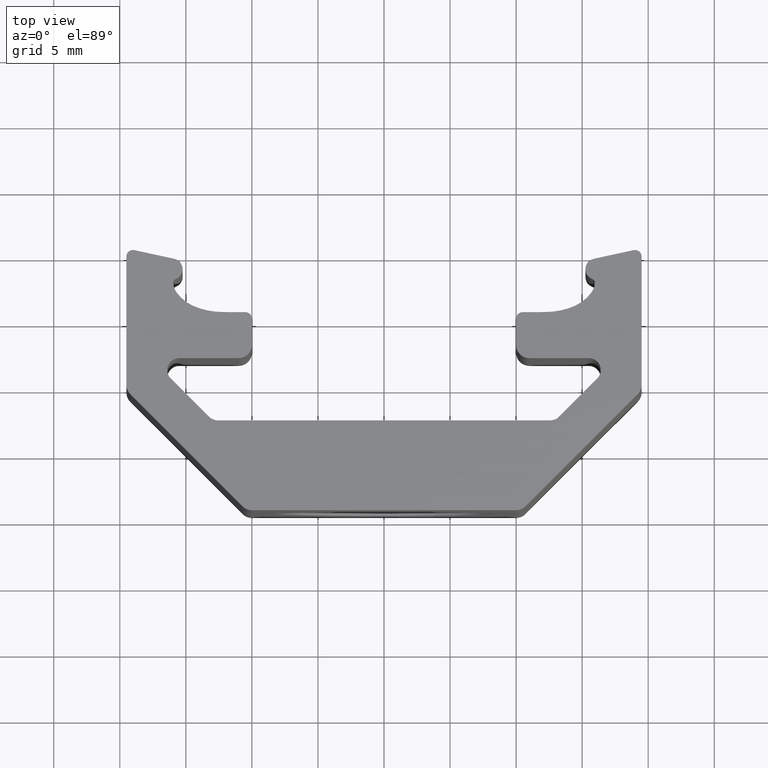
[diagram: clean part render]
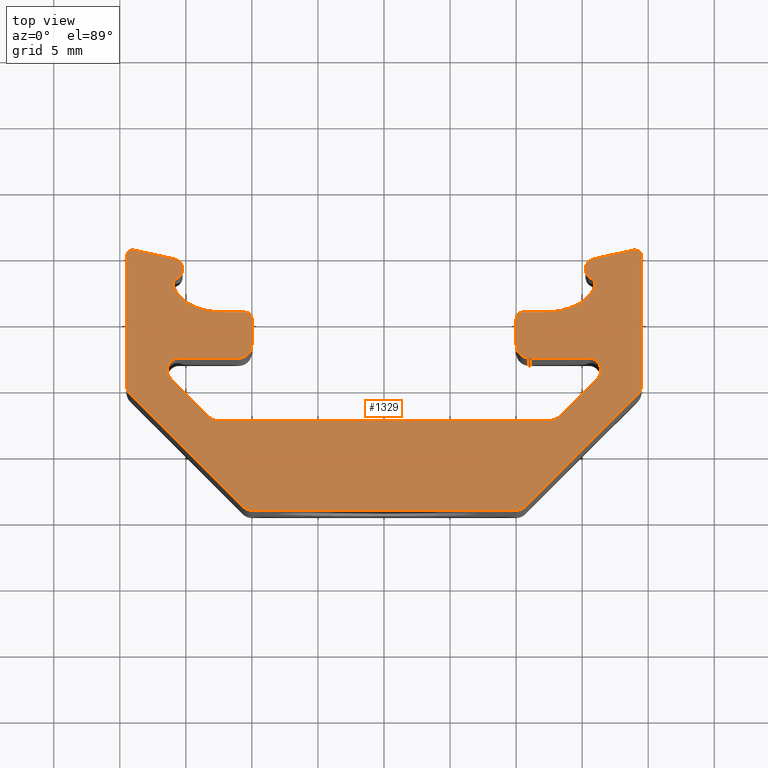
[diagram: same view with one face highlighted and labeled with its STEP entity id]
A machine part, top view. The second image highlights one B-rep face of the part: STEP entity #1329.
In plain terms, the highlighted planar face has unit normal (-0, 0, 1).
Its self-contained STEP definition (entity closure, byte-faithful):
#2 = CARTESIAN_POINT ( 'NONE',  ( -12.55735931287000007, -2.746327330299516589, 17.00000000000005684 ) ) ;
#5 = DIRECTION ( 'NONE',  ( 1.000000000000000000, 0.000000000000000000, 0.000000000000000000 ) ) ;
#12 = LINE ( 'NONE', #1177, #908 ) ;
#13 = VECTOR ( 'NONE', #1371, 1000.000000000000000 ) ;
#14 = ORIENTED_EDGE ( 'NONE', *, *, #1469, .F. ) ;
#16 = ORIENTED_EDGE ( 'NONE', *, *, #392, .T. ) ;
#24 = AXIS2_PLACEMENT_3D ( 'NONE', #1504, #122, #628 ) ;
#29 = CARTESIAN_POINT ( 'NONE',  ( -19.50447861306999897, 9.658058777570477815, 17.00000000000005684 ) ) ;
#34 = VERTEX_POINT ( 'NONE', #37 ) ;
#37 = CARTESIAN_POINT ( 'NONE',  ( 9.999999999997999822, 2.967902201490478564, 17.00000000000005684 ) ) ;
#43 = CARTESIAN_POINT ( 'NONE',  ( 13.26446609406099952, -2.453434111479510626, 17.00000000000005684 ) ) ;
#49 = DIRECTION ( 'NONE',  ( -1.000000000000000000, 0.000000000000000000, 0.000000000000000000 ) ) ;
#51 = EDGE_CURVE ( 'NONE', #572, #67, #516, .T. ) ;
#59 = CARTESIAN_POINT ( 'NONE',  ( 16.04437941888900099, 8.706577141180476431, 17.00000000000005684 ) ) ;
#61 = CIRCLE ( 'NONE', #690, 5.100000000000000533 ) ;
#67 = VERTEX_POINT ( 'NONE', #1178 ) ;
#71 = ORIENTED_EDGE ( 'NONE', *, *, #51, .T. ) ;
#80 = EDGE_CURVE ( 'NONE', #744, #67, #911, .T. ) ;
#81 = ORIENTED_EDGE ( 'NONE', *, *, #1446, .T. ) ;
#82 = CARTESIAN_POINT ( 'NONE',  ( 19.50447861305200092, 59.98920657563348158, 17.00000000000005684 ) ) ;
#87 = VERTEX_POINT ( 'NONE', #781 ) ;
#89 = CIRCLE ( 'NONE', #170, 0.5000000000000004441 ) ;
#90 = LINE ( 'NONE', #1101, #1040 ) ;
#91 = AXIS2_PLACEMENT_3D ( 'NONE', #595, #976, #1082 ) ;
#94 = CARTESIAN_POINT ( 'NONE',  ( -15.68966921697000139, 6.924975698340475994, 17.00000000000005684 ) ) ;
#102 = CARTESIAN_POINT ( 'NONE',  ( -11.56338247360000082, 5.453688639120484183, 17.00000000000005684 ) ) ;
#114 = VERTEX_POINT ( 'NONE', #1352 ) ;
#117 = CARTESIAN_POINT ( 'NONE',  ( -16.14337356033999882, 0.4254733548204811533, 17.00000000000005684 ) ) ;
#119 = CARTESIAN_POINT ( 'NONE',  ( -13.26446609405999943, -2.453434111479510626, 17.00000000000005684 ) ) ;
#122 = DIRECTION ( 'NONE',  ( 0.000000000000000000, 0.000000000000000000, -1.000000000000000000 ) ) ;
#134 = EDGE_CURVE ( 'NONE', #257, #271, #1304, .T. ) ;
#137 = CARTESIAN_POINT ( 'NONE',  ( -10.00000000000000000, -9.546327330299517300, 17.00000000000005684 ) ) ;
#138 = DIRECTION ( 'NONE',  ( 1.000000000000000000, 0.000000000000000000, 0.000000000000000000 ) ) ;
#140 = CARTESIAN_POINT ( 'NONE',  ( -15.50447861305000075, 1.967902201490477676, 17.00000000000005684 ) ) ;
#146 = CARTESIAN_POINT ( 'NONE',  ( -12.08869990735999878, 5.458273014910481891, 17.00000000000005684 ) ) ;
#153 = CARTESIAN_POINT ( 'NONE',  ( -19.00447861306999897, 9.658058777570477815, 17.00000000000005684 ) ) ;
#157 = EDGE_CURVE ( 'NONE', #87, #1540, #811, .T. ) ;
#159 = VERTEX_POINT ( 'NONE', #1079 ) ;
#165 = CARTESIAN_POINT ( 'NONE',  ( -19.50447861306999897, 9.658058777570477815, 17.00000000000005684 ) ) ;
#170 = AXIS2_PLACEMENT_3D ( 'NONE', #153, #785, #772 ) ;
#171 = EDGE_LOOP ( 'NONE', ( #1259, #1628, #469, #1263, #907, #1522, #1116, #975, #880, #1044, #704, #1499, #1503, #1147, #1373, #81, #730, #695, #919, #410, #587, #1567, #686, #467, #71, #629, #234, #914, #1166, #999, #1631, #1157, #841, #16, #1295, #1399, #1158, #1188, #580, #14, #1318, #1150, #913, #844 ) ) ;
#174 = CARTESIAN_POINT ( 'NONE',  ( 18.50447861305200092, -0.04184871723952182654, 17.00000000000005684 ) ) ;
#179 = EDGE_CURVE ( 'NONE', #1063, #87, #1225, .T. ) ;
#181 = DIRECTION ( 'NONE',  ( 1.000000000000000000, 0.000000000000000000, 0.000000000000000000 ) ) ;
#182 = EDGE_CURVE ( 'NONE', #965, #458, #338, .T. ) ;
#190 = EDGE_CURVE ( 'NONE', #1384, #1415, #1624, .T. ) ;
#192 = CARTESIAN_POINT ( 'NONE',  ( 10.00000000000000000, -2.746327330299516589, 17.00000000000005684 ) ) ;
#201 = VERTEX_POINT ( 'NONE', #820 ) ;
#202 = CIRCLE ( 'NONE', #1521, 0.5000000000000004441 ) ;
#204 = DIRECTION ( 'NONE',  ( 0.000000000000000000, 0.000000000000000000, 1.000000000000000000 ) ) ;
#209 = VERTEX_POINT ( 'NONE', #959 ) ;
#225 = CARTESIAN_POINT ( 'NONE',  ( -10.50000000002000000, 5.453688639120484183, 17.00000000000005684 ) ) ;
#231 = AXIS2_PLACEMENT_3D ( 'NONE', #764, #758, #437 ) ;
#234 = ORIENTED_EDGE ( 'NONE', *, *, #1402, .T. ) ;
#237 = VERTEX_POINT ( 'NONE', #601 ) ;
#238 = EDGE_CURVE ( 'NONE', #572, #1511, #632, .T. ) ;
#239 = CARTESIAN_POINT ( 'NONE',  ( -11.00000000001999823, 1.967902201490477676, 17.00000000000005684 ) ) ;
#243 = DIRECTION ( 'NONE',  ( 1.000000000000000000, 0.000000000000000000, 0.000000000000000000 ) ) ;
#245 = AXIS2_PLACEMENT_3D ( 'NONE', #831, #1213, #591 ) ;
#257 = VERTEX_POINT ( 'NONE', #1011 ) ;
#270 = AXIS2_PLACEMENT_3D ( 'NONE', #1383, #1498, #243 ) ;
#271 = VERTEX_POINT ( 'NONE', #1494 ) ;
#287 = CIRCLE ( 'NONE', #1228, 0.2999999999999999334 ) ;
#293 = AXIS2_PLACEMENT_3D ( 'NONE', #709, #1608, #1219 ) ;
#295 = CARTESIAN_POINT ( 'NONE',  ( -10.50000000002000000, 4.953688639120483295, 17.00000000000005684 ) ) ;
#296 = CIRCLE ( 'NONE', #1184, 0.5000000000000004441 ) ;
#300 = DIRECTION ( 'NONE',  ( 0.000000000000000000, 0.000000000000000000, -1.000000000000000000 ) ) ;
#304 = VERTEX_POINT ( 'NONE', #2 ) ;
#311 = CARTESIAN_POINT ( 'NONE',  ( 15.50447861305899977, 1.064368302100479724, 17.00000000000005684 ) ) ;
#315 = VERTEX_POINT ( 'NONE', #119 ) ;
#324 = CIRCLE ( 'NONE', #1532, 30.09999999999999432 ) ;
#336 = EDGE_CURVE ( 'NONE', #784, #159, #1173, .T. ) ;
#337 = CARTESIAN_POINT ( 'NONE',  ( -18.50447861305000075, -0.04184871723952182654, 17.00000000000005684 ) ) ;
#338 = LINE ( 'NONE', #931, #366 ) ;
#340 = CIRCLE ( 'NONE', #540, 1.000000000000000888 ) ;
#349 = PLANE ( 'NONE',  #245 ) ;
#353 = CARTESIAN_POINT ( 'NONE',  ( 13.26446609406099952, -2.453434111479510626, 17.00000000000005684 ) ) ;
#355 = CARTESIAN_POINT ( 'NONE',  ( -10.00000000000000000, -9.546327330299517300, 17.00000000000005684 ) ) ;
#356 = EDGE_CURVE ( 'NONE', #1551, #1431, #460, .T. ) ;
#366 = VECTOR ( 'NONE', #1600, 1000.000000000000000 ) ;
#381 = EDGE_CURVE ( 'NONE', #114, #398, #89, .T. ) ;
#382 = VERTEX_POINT ( 'NONE', #656 ) ;
#388 = DIRECTION ( 'NONE',  ( 1.000000000000000000, 0.000000000000000000, 0.000000000000000000 ) ) ;
#392 = EDGE_CURVE ( 'NONE', #382, #1346, #12, .T. ) ;
#398 = VERTEX_POINT ( 'NONE', #165 ) ;
#408 = DIRECTION ( 'NONE',  ( -1.000000000000000000, 0.000000000000000000, 0.000000000000000000 ) ) ;
#410 = ORIENTED_EDGE ( 'NONE', *, *, #182, .F. ) ;
#411 = VERTEX_POINT ( 'NONE', #895 ) ;
#412 = DIRECTION ( 'NONE',  ( 0.000000000000000000, -1.000000000000000000, 1.000000000000000078E-15 ) ) ;
#415 = DIRECTION ( 'NONE',  ( 0.000000000000000000, 2.000000000000000155E-15, 1.000000000000000000 ) ) ;
#429 = DIRECTION ( 'NONE',  ( 0.7071067811860475283, -0.7071067811870476172, 0.000000000000000000 ) ) ;
#431 = DIRECTION ( 'NONE',  ( 1.000000000000000000, 0.000000000000000000, 0.000000000000000000 ) ) ;
#432 = VECTOR ( 'NONE', #582, 1000.000000000000000 ) ;
#435 = DIRECTION ( 'NONE',  ( 1.000000000000000000, 0.000000000000000000, 0.000000000000000000 ) ) ;
#437 = DIRECTION ( 'NONE',  ( 1.000000000000000000, 0.000000000000000000, 0.000000000000000000 ) ) ;
#440 = EDGE_CURVE ( 'NONE', #398, #1098, #1161, .T. ) ;
#442 = CARTESIAN_POINT ( 'NONE',  ( -10.00000000000000000, -8.546327330299515523, 17.00000000000005684 ) ) ;
#443 = CARTESIAN_POINT ( 'NONE',  ( -10.00000000001000089, 4.953688639120483295, 17.00000000000005684 ) ) ;
#450 = CARTESIAN_POINT ( 'NONE',  ( 19.50447861306300013, -0.04184871723952182654, 17.00000000000005684 ) ) ;
#453 = VERTEX_POINT ( 'NONE', #146 ) ;
#454 = DIRECTION ( 'NONE',  ( 0.000000000000000000, -2.000000000000000155E-15, -1.000000000000000000 ) ) ;
#458 = VERTEX_POINT ( 'NONE', #663 ) ;
#460 = CIRCLE ( 'NONE', #664, 1.400000000000000133 ) ;
#464 = CARTESIAN_POINT ( 'NONE',  ( 11.00000000001899991, 2.967902201490478564, 17.00000000000005684 ) ) ;
#467 = ORIENTED_EDGE ( 'NONE', *, *, #238, .F. ) ;
#469 = ORIENTED_EDGE ( 'NONE', *, *, #577, .T. ) ;
#472 = CARTESIAN_POINT ( 'NONE',  ( 12.79270360404400009, 5.495168285260483287, 17.00000000000005684 ) ) ;
#474 = EDGE_CURVE ( 'NONE', #237, #34, #1411, .T. ) ;
#506 = CARTESIAN_POINT ( 'NONE',  ( -11.56338247360000082, 35.55368863912048027, 17.00000000000005684 ) ) ;
#516 = CIRCLE ( 'NONE', #1388, 0.9035338993859994838 ) ;
#523 = EDGE_CURVE ( 'NONE', #1511, #34, #1598, .T. ) ;
#540 = AXIS2_PLACEMENT_3D ( 'NONE', #174, #204, #431 ) ;
#543 = DIRECTION ( 'NONE',  ( 0.000000000000000000, 0.000000000000000000, 1.000000000000000000 ) ) ;
#546 = DIRECTION ( 'NONE',  ( 1.000000000000000000, 0.000000000000000000, 0.000000000000000000 ) ) ;
#553 = AXIS2_PLACEMENT_3D ( 'NONE', #295, #782, #435 ) ;
#556 = CARTESIAN_POINT ( 'NONE',  ( -14.50356245095999874, 5.953591531640475942, 17.00000000000005684 ) ) ;
#565 = DIRECTION ( 'NONE',  ( 0.9771109320903158535, 0.2127304077690684858, 0.000000000000000000 ) ) ;
#567 = AXIS2_PLACEMENT_3D ( 'NONE', #442, #967, #1449 ) ;
#568 = VERTEX_POINT ( 'NONE', #689 ) ;
#571 = EDGE_CURVE ( 'NONE', #1246, #1443, #1577, .T. ) ;
#572 = VERTEX_POINT ( 'NONE', #1200 ) ;
#574 = CARTESIAN_POINT ( 'NONE',  ( -15.87419509273000173, 9.488265886850477671, 17.00000000000005684 ) ) ;
#576 = CARTESIAN_POINT ( 'NONE',  ( -10.70710678118000025, -9.253434111479510449, 17.00000000000005684 ) ) ;
#577 = EDGE_CURVE ( 'NONE', #1098, #1065, #1252, .T. ) ;
#580 = ORIENTED_EDGE ( 'NONE', *, *, #810, .F. ) ;
#582 = DIRECTION ( 'NONE',  ( 0.000000000000000000, -1.000000000000000000, 0.000000000000000000 ) ) ;
#587 = ORIENTED_EDGE ( 'NONE', *, *, #1240, .F. ) ;
#589 = DIRECTION ( 'NONE',  ( 1.000000000000000000, 0.000000000000000000, 0.000000000000000000 ) ) ;
#591 = DIRECTION ( 'NONE',  ( 0.000000000000000000, -1.000000000000000000, 8.599999999999999722E-16 ) ) ;
#594 = VERTEX_POINT ( 'NONE', #574 ) ;
#595 = CARTESIAN_POINT ( 'NONE',  ( -11.00000000001999823, 2.967902201490478564, 17.00000000000005684 ) ) ;
#601 = CARTESIAN_POINT ( 'NONE',  ( 9.999999999974999554, 4.953688639120483295, 17.00000000000005684 ) ) ;
#605 = VERTEX_POINT ( 'NONE', #556 ) ;
#606 = EDGE_CURVE ( 'NONE', #1141, #1443, #340, .T. ) ;
#607 = CIRCLE ( 'NONE', #1027, 0.8000000000000003775 ) ;
#628 = DIRECTION ( 'NONE',  ( -1.000000000000000000, 0.000000000000000000, 0.000000000000000000 ) ) ;
#629 = ORIENTED_EDGE ( 'NONE', *, *, #80, .F. ) ;
#632 = LINE ( 'NONE', #1616, #13 ) ;
#650 = DIRECTION ( 'NONE',  ( 1.000000000000000000, 0.000000000000000000, 0.000000000000000000 ) ) ;
#655 = VERTEX_POINT ( 'NONE', #239 ) ;
#656 = CARTESIAN_POINT ( 'NONE',  ( -10.00000000000000000, 2.967902201490478564, 17.00000000000005684 ) ) ;
#663 = CARTESIAN_POINT ( 'NONE',  ( 11.56338247354699966, 5.453688639120484183, 17.00000000000005684 ) ) ;
#664 = AXIS2_PLACEMENT_3D ( 'NONE', #1153, #543, #138 ) ;
#665 = VECTOR ( 'NONE', #412, 1000.000000000000000 ) ;
#674 = DIRECTION ( 'NONE',  ( 0.7071067811860475283, 0.7071067811870476172, -1.410000000000092923E-15 ) ) ;
#680 = CIRCLE ( 'NONE', #1611, 0.9035338993859994838 ) ;
#686 = ORIENTED_EDGE ( 'NONE', *, *, #523, .F. ) ;
#687 = DIRECTION ( 'NONE',  ( 0.000000000000000000, 0.000000000000000000, 1.000000000000000000 ) ) ;
#689 = CARTESIAN_POINT ( 'NONE',  ( 15.68966921691900041, 6.924975698340475994, 17.00000000000005684 ) ) ;
#690 = AXIS2_PLACEMENT_3D ( 'NONE', #1483, #1358, #732 ) ;
#694 = VECTOR ( 'NONE', #1270, 1000.000000000000000 ) ;
#695 = ORIENTED_EDGE ( 'NONE', *, *, #336, .T. ) ;
#701 = AXIS2_PLACEMENT_3D ( 'NONE', #960, #1468, #1450 ) ;
#704 = ORIENTED_EDGE ( 'NONE', *, *, #981, .F. ) ;
#709 = CARTESIAN_POINT ( 'NONE',  ( 13.19344583951200178, 8.763145671460478070, 17.00000000000005684 ) ) ;
#710 = EDGE_CURVE ( 'NONE', #1306, #784, #61, .T. ) ;
#718 = AXIS2_PLACEMENT_3D ( 'NONE', #59, #1218, #49 ) ;
#719 = VERTEX_POINT ( 'NONE', #117 ) ;
#730 = ORIENTED_EDGE ( 'NONE', *, *, #710, .T. ) ;
#732 = DIRECTION ( 'NONE',  ( -1.000000000000000000, 0.000000000000000000, 0.000000000000000000 ) ) ;
#737 = DIRECTION ( 'NONE',  ( 0.000000000000000000, 0.000000000000000000, 1.000000000000000000 ) ) ;
#744 = VERTEX_POINT ( 'NONE', #353 ) ;
#758 = DIRECTION ( 'NONE',  ( 0.000000000000000000, 0.000000000000000000, 1.000000000000000000 ) ) ;
#763 = EDGE_CURVE ( 'NONE', #1063, #411, #926, .T. ) ;
#764 = CARTESIAN_POINT ( 'NONE',  ( -11.91243060233999884, 15.55673473599047973, 17.00000000000005684 ) ) ;
#772 = DIRECTION ( 'NONE',  ( 1.000000000000000000, 0.000000000000000000, 0.000000000000000000 ) ) ;
#780 = EDGE_CURVE ( 'NONE', #271, #1141, #90, .T. ) ;
#781 = CARTESIAN_POINT ( 'NONE',  ( 15.87419509267400031, 9.488265886850477671, 17.00000000000005684 ) ) ;
#782 = DIRECTION ( 'NONE',  ( 0.000000000000000000, 0.000000000000000000, 1.000000000000000000 ) ) ;
#784 = VERTEX_POINT ( 'NONE', #472 ) ;
#785 = DIRECTION ( 'NONE',  ( 0.000000000000000000, 0.000000000000000000, 1.000000000000000000 ) ) ;
#801 = DIRECTION ( 'NONE',  ( -1.000000000000000000, 0.000000000000000000, 0.000000000000000000 ) ) ;
#810 = EDGE_CURVE ( 'NONE', #605, #1232, #819, .T. ) ;
#811 = LINE ( 'NONE', #1565, #879 ) ;
#815 = EDGE_CURVE ( 'NONE', #1415, #257, #884, .T. ) ;
#819 = CIRCLE ( 'NONE', #1591, 5.100000000000000533 ) ;
#820 = CARTESIAN_POINT ( 'NONE',  ( -15.50447861305000075, 1.967902201490477676, 17.00000000000005684 ) ) ;
#823 = AXIS2_PLACEMENT_3D ( 'NONE', #1021, #300, #920 ) ;
#825 = DIRECTION ( 'NONE',  ( -1.000000000000000000, 0.000000000000000000, 0.000000000000000000 ) ) ;
#831 = CARTESIAN_POINT ( 'NONE',  ( -1.501501999603193177E-11, 0.6120712324704791207, 17.00000000000005684 ) ) ;
#835 = CIRCLE ( 'NONE', #24, 1.400000000000000133 ) ;
#839 = DIRECTION ( 'NONE',  ( 0.000000000000000000, 0.000000000000000000, 1.000000000000000000 ) ) ;
#841 = ORIENTED_EDGE ( 'NONE', *, *, #989, .T. ) ;
#844 = ORIENTED_EDGE ( 'NONE', *, *, #1010, .T. ) ;
#851 = CARTESIAN_POINT ( 'NONE',  ( 10.49999999996299849, 5.453688639120484183, 17.00000000000005684 ) ) ;
#854 = VECTOR ( 'NONE', #388, 1000.000000000000000 ) ;
#871 = CARTESIAN_POINT ( 'NONE',  ( -16.04437941894000019, 8.706577141180476431, 17.00000000000005684 ) ) ;
#876 = VECTOR ( 'NONE', #1035, 1000.000000000000000 ) ;
#878 = DIRECTION ( 'NONE',  ( -1.000000000000000000, 0.000000000000000000, 0.000000000000000000 ) ) ;
#879 = VECTOR ( 'NONE', #565, 1000.000000000000114 ) ;
#880 = ORIENTED_EDGE ( 'NONE', *, *, #606, .T. ) ;
#884 = LINE ( 'NONE', #137, #876 ) ;
#895 = CARTESIAN_POINT ( 'NONE',  ( 15.95872644636200199, 7.654558739180473026, 17.00000000000005684 ) ) ;
#897 = DIRECTION ( 'NONE',  ( 0.000000000000000000, -2.000000000000000155E-15, -1.000000000000000000 ) ) ;
#898 = CARTESIAN_POINT ( 'NONE',  ( -19.50447861306000163, -0.04184871723952182654, 17.00000000000005684 ) ) ;
#904 = DIRECTION ( 'NONE',  ( -0.7071067811860475283, 0.7071067811870476172, -1.410000000000092923E-15 ) ) ;
#906 = AXIS2_PLACEMENT_3D ( 'NONE', #950, #839, #1316 ) ;
#907 = ORIENTED_EDGE ( 'NONE', *, *, #190, .T. ) ;
#908 = VECTOR ( 'NONE', #1168, 1000.000000000000000 ) ;
#911 = LINE ( 'NONE', #43, #1095 ) ;
#913 = ORIENTED_EDGE ( 'NONE', *, *, #1137, .T. ) ;
#914 = ORIENTED_EDGE ( 'NONE', *, *, #941, .F. ) ;
#917 = CARTESIAN_POINT ( 'NONE',  ( 14.50356245090799945, 5.953591531640475942, 17.00000000000005684 ) ) ;
#919 = ORIENTED_EDGE ( 'NONE', *, *, #1160, .T. ) ;
#920 = DIRECTION ( 'NONE',  ( -1.000000000000000000, 0.000000000000000000, 0.000000000000000000 ) ) ;
#926 = CIRCLE ( 'NONE', #1515, 0.2999999999999999334 ) ;
#931 = CARTESIAN_POINT ( 'NONE',  ( 10.49999999996299849, 5.453688639120484183, 17.00000000000005684 ) ) ;
#932 = CARTESIAN_POINT ( 'NONE',  ( 10.49999999996299849, 4.953688639120483295, 17.00000000000005684 ) ) ;
#933 = EDGE_CURVE ( 'NONE', #1232, #453, #1066, .T. ) ;
#934 = EDGE_CURVE ( 'NONE', #209, #1551, #287, .T. ) ;
#941 = EDGE_CURVE ( 'NONE', #304, #1421, #1437, .T. ) ;
#945 = CARTESIAN_POINT ( 'NONE',  ( 19.00447861301500296, 9.658058777570477815, 17.00000000000005684 ) ) ;
#949 = EDGE_CURVE ( 'NONE', #1065, #1384, #1159, .T. ) ;
#950 = CARTESIAN_POINT ( 'NONE',  ( 10.00000000000000000, -8.546327330299515523, 17.00000000000005684 ) ) ;
#959 = CARTESIAN_POINT ( 'NONE',  ( -15.76446807539000083, 7.957144262430479564, 17.00000000000005684 ) ) ;
#960 = CARTESIAN_POINT ( 'NONE',  ( -13.19344583956000072, 8.763145671460478070, 17.00000000000005684 ) ) ;
#965 = VERTEX_POINT ( 'NONE', #851 ) ;
#967 = DIRECTION ( 'NONE',  ( 0.000000000000000000, 0.000000000000000000, 1.000000000000000000 ) ) ;
#968 = DIRECTION ( 'NONE',  ( 0.000000000000000000, -2.000000000000000155E-15, -1.000000000000000000 ) ) ;
#975 = ORIENTED_EDGE ( 'NONE', *, *, #780, .T. ) ;
#976 = DIRECTION ( 'NONE',  ( 0.000000000000000000, 2.000000000000000155E-15, 1.000000000000000000 ) ) ;
#981 = EDGE_CURVE ( 'NONE', #1540, #1246, #202, .T. ) ;
#985 = EDGE_CURVE ( 'NONE', #1220, #1556, #1338, .T. ) ;
#989 = EDGE_CURVE ( 'NONE', #655, #382, #1334, .T. ) ;
#991 = CIRCLE ( 'NONE', #1448, 30.09999999999999787 ) ;
#999 = ORIENTED_EDGE ( 'NONE', *, *, #1276, .T. ) ;
#1010 = EDGE_CURVE ( 'NONE', #594, #114, #1105, .T. ) ;
#1011 = CARTESIAN_POINT ( 'NONE',  ( 10.00000000000000000, -9.546327330299517300, 17.00000000000005684 ) ) ;
#1021 = CARTESIAN_POINT ( 'NONE',  ( 11.91243060229199990, 15.55673473599047973, 17.00000000000005684 ) ) ;
#1026 = CARTESIAN_POINT ( 'NONE',  ( -15.65950132155000141, 7.676106932900481183, 17.00000000000005684 ) ) ;
#1027 = AXIS2_PLACEMENT_3D ( 'NONE', #871, #737, #1126 ) ;
#1031 = DIRECTION ( 'NONE',  ( 0.000000000000000000, 0.000000000000000000, -1.000000000000000000 ) ) ;
#1035 = DIRECTION ( 'NONE',  ( 1.000000000000000000, 0.000000000000000000, 0.000000000000000000 ) ) ;
#1039 = LINE ( 'NONE', #1170, #1425 ) ;
#1040 = VECTOR ( 'NONE', #1235, 1000.000000000000114 ) ;
#1044 = ORIENTED_EDGE ( 'NONE', *, *, #571, .F. ) ;
#1063 = VERTEX_POINT ( 'NONE', #1603 ) ;
#1065 = VERTEX_POINT ( 'NONE', #1481 ) ;
#1066 = CIRCLE ( 'NONE', #231, 10.09999999999999964 ) ;
#1073 = DIRECTION ( 'NONE',  ( 0.000000000000000000, 0.000000000000000000, -1.000000000000000000 ) ) ;
#1078 = EDGE_CURVE ( 'NONE', #201, #655, #1272, .T. ) ;
#1079 = CARTESIAN_POINT ( 'NONE',  ( 12.08869990730899957, 5.458273014910481891, 17.00000000000005684 ) ) ;
#1082 = DIRECTION ( 'NONE',  ( 1.000000000000000000, 0.000000000000000000, 0.000000000000000000 ) ) ;
#1095 = VECTOR ( 'NONE', #674, 1000.000000000000114 ) ;
#1098 = VERTEX_POINT ( 'NONE', #898 ) ;
#1101 = CARTESIAN_POINT ( 'NONE',  ( 10.70710678118699910, -9.253434111479510449, 17.00000000000005684 ) ) ;
#1105 = LINE ( 'NONE', #1581, #1307 ) ;
#1112 = CARTESIAN_POINT ( 'NONE',  ( 11.00000000001899991, 1.967902201490477676, 17.00000000000005684 ) ) ;
#1116 = ORIENTED_EDGE ( 'NONE', *, *, #134, .T. ) ;
#1117 = EDGE_CURVE ( 'NONE', #453, #1556, #991, .T. ) ;
#1126 = DIRECTION ( 'NONE',  ( 1.000000000000000000, 0.000000000000000000, 0.000000000000000000 ) ) ;
#1133 = CARTESIAN_POINT ( 'NONE',  ( 11.56338247354699966, 35.55368863912048027, 17.00000000000005684 ) ) ;
#1135 = EDGE_CURVE ( 'NONE', #315, #304, #1343, .T. ) ;
#1137 = EDGE_CURVE ( 'NONE', #209, #594, #607, .T. ) ;
#1141 = VERTEX_POINT ( 'NONE', #1257 ) ;
#1147 = ORIENTED_EDGE ( 'NONE', *, *, #763, .T. ) ;
#1150 = ORIENTED_EDGE ( 'NONE', *, *, #934, .F. ) ;
#1151 = VECTOR ( 'NONE', #429, 1000.000000000000114 ) ;
#1153 = CARTESIAN_POINT ( 'NONE',  ( -14.56234253039999871, 7.755116976520481487, 17.00000000000005684 ) ) ;
#1156 = EDGE_CURVE ( 'NONE', #411, #568, #835, .T. ) ;
#1157 = ORIENTED_EDGE ( 'NONE', *, *, #1078, .T. ) ;
#1158 = ORIENTED_EDGE ( 'NONE', *, *, #1117, .F. ) ;
#1159 = LINE ( 'NONE', #1542, #1151 ) ;
#1160 = EDGE_CURVE ( 'NONE', #159, #458, #324, .T. ) ;
#1161 = LINE ( 'NONE', #29, #694 ) ;
#1164 = CARTESIAN_POINT ( 'NONE',  ( 19.50447861301500296, 9.658058777570477815, 17.00000000000005684 ) ) ;
#1166 = ORIENTED_EDGE ( 'NONE', *, *, #1135, .F. ) ;
#1168 = DIRECTION ( 'NONE',  ( 0.000000000000000000, 1.000000000000000000, -1.000000000000000078E-15 ) ) ;
#1170 = CARTESIAN_POINT ( 'NONE',  ( -13.26446609405999943, -2.453434111479510626, 17.00000000000005684 ) ) ;
#1173 = CIRCLE ( 'NONE', #823, 10.09999999999999964 ) ;
#1177 = CARTESIAN_POINT ( 'NONE',  ( -10.00000000000000000, 2.967902201490478564, 17.00000000000005684 ) ) ;
#1178 = CARTESIAN_POINT ( 'NONE',  ( 16.14337356034700122, 0.4254733548204811533, 17.00000000000005684 ) ) ;
#1184 = AXIS2_PLACEMENT_3D ( 'NONE', #932, #1031, #1442 ) ;
#1188 = ORIENTED_EDGE ( 'NONE', *, *, #933, .F. ) ;
#1194 = CARTESIAN_POINT ( 'NONE',  ( 12.55735931287300033, -1.746327330299522806, 17.00000000000005684 ) ) ;
#1200 = CARTESIAN_POINT ( 'NONE',  ( 15.50447861305300101, 1.967902201490477676, 17.00000000000005684 ) ) ;
#1202 = VECTOR ( 'NONE', #825, 1000.000000000000000 ) ;
#1207 = EDGE_CURVE ( 'NONE', #1346, #1220, #1266, .T. ) ;
#1213 = DIRECTION ( 'NONE',  ( -1.000000000000000072E-17, 8.599999999999999722E-16, 1.000000000000000000 ) ) ;
#1218 = DIRECTION ( 'NONE',  ( 0.000000000000000000, 0.000000000000000000, -1.000000000000000000 ) ) ;
#1219 = DIRECTION ( 'NONE',  ( -1.000000000000000000, 0.000000000000000000, 0.000000000000000000 ) ) ;
#1220 = VERTEX_POINT ( 'NONE', #1288 ) ;
#1225 = CIRCLE ( 'NONE', #718, 0.8000000000000003775 ) ;
#1228 = AXIS2_PLACEMENT_3D ( 'NONE', #1026, #1535, #1268 ) ;
#1232 = VERTEX_POINT ( 'NONE', #1422 ) ;
#1235 = DIRECTION ( 'NONE',  ( 0.7071067811865474617, 0.7071067811865474617, 0.000000000000000000 ) ) ;
#1239 = DIRECTION ( 'NONE',  ( -1.000000000000000000, 0.000000000000000000, 0.000000000000000000 ) ) ;
#1240 = EDGE_CURVE ( 'NONE', #237, #965, #296, .T. ) ;
#1242 = CIRCLE ( 'NONE', #1451, 0.9999999999999991118 ) ;
#1246 = VERTEX_POINT ( 'NONE', #1164 ) ;
#1252 = CIRCLE ( 'NONE', #1545, 1.000000000000000888 ) ;
#1257 = CARTESIAN_POINT ( 'NONE',  ( 19.21158539423900180, -0.7489554984295223594, 17.00000000000005684 ) ) ;
#1259 = ORIENTED_EDGE ( 'NONE', *, *, #381, .T. ) ;
#1263 = ORIENTED_EDGE ( 'NONE', *, *, #949, .T. ) ;
#1266 = CIRCLE ( 'NONE', #553, 0.5000000000000004441 ) ;
#1268 = DIRECTION ( 'NONE',  ( 1.000000000000000000, 0.000000000000000000, 0.000000000000000000 ) ) ;
#1270 = DIRECTION ( 'NONE',  ( 0.000000000000000000, -1.000000000000000000, 0.000000000000000000 ) ) ;
#1272 = LINE ( 'NONE', #140, #854 ) ;
#1274 = CARTESIAN_POINT ( 'NONE',  ( -12.34820931608000016, 10.57576124553048125, 17.00000000000005684 ) ) ;
#1276 = EDGE_CURVE ( 'NONE', #315, #719, #1039, .T. ) ;
#1288 = CARTESIAN_POINT ( 'NONE',  ( -10.50000000002000000, 5.453688639120484183, 17.00000000000005684 ) ) ;
#1295 = ORIENTED_EDGE ( 'NONE', *, *, #1207, .T. ) ;
#1296 = EDGE_CURVE ( 'NONE', #201, #719, #680, .T. ) ;
#1304 = CIRCLE ( 'NONE', #906, 0.9999999999999991118 ) ;
#1306 = VERTEX_POINT ( 'NONE', #917 ) ;
#1307 = VECTOR ( 'NONE', #1367, 1000.000000000000114 ) ;
#1316 = DIRECTION ( 'NONE',  ( 1.000000000000000000, 0.000000000000000000, 0.000000000000000000 ) ) ;
#1317 = FACE_OUTER_BOUND ( 'NONE', #171, .T. ) ;
#1318 = ORIENTED_EDGE ( 'NONE', *, *, #356, .F. ) ;
#1329 = ADVANCED_FACE ( 'NONE', ( #1317 ), #349, .T. ) ;
#1334 = CIRCLE ( 'NONE', #91, 0.9999999999999991118 ) ;
#1338 = LINE ( 'NONE', #225, #1202 ) ;
#1343 = CIRCLE ( 'NONE', #270, 0.9999999999999991118 ) ;
#1346 = VERTEX_POINT ( 'NONE', #443 ) ;
#1351 = DIRECTION ( 'NONE',  ( -1.000000000000000000, 0.000000000000000000, 0.000000000000000000 ) ) ;
#1352 = CARTESIAN_POINT ( 'NONE',  ( -18.89811340917999871, 10.14661424361047715, 17.00000000000005684 ) ) ;
#1358 = DIRECTION ( 'NONE',  ( 0.000000000000000000, 0.000000000000000000, -1.000000000000000000 ) ) ;
#1367 = DIRECTION ( 'NONE',  ( -0.9771109320903158535, 0.2127304077690684858, 0.000000000000000000 ) ) ;
#1371 = DIRECTION ( 'NONE',  ( -1.000000000000000000, 0.000000000000000000, 0.000000000000000000 ) ) ;
#1372 = CARTESIAN_POINT ( 'NONE',  ( -15.95872644641000271, 7.654558739180473026, 17.00000000000005684 ) ) ;
#1373 = ORIENTED_EDGE ( 'NONE', *, *, #1156, .T. ) ;
#1376 = CIRCLE ( 'NONE', #293, 3.100000000000000533 ) ;
#1378 = DIRECTION ( 'NONE',  ( 0.000000000000000000, 0.000000000000000000, -1.000000000000000000 ) ) ;
#1383 = CARTESIAN_POINT ( 'NONE',  ( -12.55735931287000007, -1.746327330299522806, 17.00000000000005684 ) ) ;
#1384 = VERTEX_POINT ( 'NONE', #576 ) ;
#1388 = AXIS2_PLACEMENT_3D ( 'NONE', #311, #897, #408 ) ;
#1399 = ORIENTED_EDGE ( 'NONE', *, *, #985, .T. ) ;
#1402 = EDGE_CURVE ( 'NONE', #744, #1421, #1242, .T. ) ;
#1411 = LINE ( 'NONE', #1544, #665 ) ;
#1415 = VERTEX_POINT ( 'NONE', #355 ) ;
#1421 = VERTEX_POINT ( 'NONE', #1457 ) ;
#1422 = CARTESIAN_POINT ( 'NONE',  ( -12.79270360409999974, 5.495168285260483287, 17.00000000000005684 ) ) ;
#1425 = VECTOR ( 'NONE', #904, 1000.000000000000114 ) ;
#1431 = VERTEX_POINT ( 'NONE', #94 ) ;
#1437 = LINE ( 'NONE', #192, #1599 ) ;
#1442 = DIRECTION ( 'NONE',  ( -1.000000000000000000, 0.000000000000000000, 0.000000000000000000 ) ) ;
#1443 = VERTEX_POINT ( 'NONE', #450 ) ;
#1446 = EDGE_CURVE ( 'NONE', #568, #1306, #1376, .T. ) ;
#1448 = AXIS2_PLACEMENT_3D ( 'NONE', #506, #1520, #5 ) ;
#1449 = DIRECTION ( 'NONE',  ( 1.000000000000000000, 0.000000000000000000, 0.000000000000000000 ) ) ;
#1450 = DIRECTION ( 'NONE',  ( 1.000000000000000000, 0.000000000000000000, 0.000000000000000000 ) ) ;
#1451 = AXIS2_PLACEMENT_3D ( 'NONE', #1194, #968, #801 ) ;
#1457 = CARTESIAN_POINT ( 'NONE',  ( 12.55735931287300033, -2.746327330299516589, 17.00000000000005684 ) ) ;
#1466 = AXIS2_PLACEMENT_3D ( 'NONE', #464, #454, #1597 ) ;
#1468 = DIRECTION ( 'NONE',  ( 0.000000000000000000, 0.000000000000000000, 1.000000000000000000 ) ) ;
#1469 = EDGE_CURVE ( 'NONE', #1431, #605, #1555, .T. ) ;
#1474 = CARTESIAN_POINT ( 'NONE',  ( 15.65950132150200069, 7.676106932900481183, 17.00000000000005684 ) ) ;
#1481 = CARTESIAN_POINT ( 'NONE',  ( -19.21158539422999922, -0.7489554984295223594, 17.00000000000005684 ) ) ;
#1483 = CARTESIAN_POINT ( 'NONE',  ( 12.34820931603100114, 10.57576124553048125, 17.00000000000005684 ) ) ;
#1494 = CARTESIAN_POINT ( 'NONE',  ( 10.70710678118699910, -9.253434111479510449, 17.00000000000005684 ) ) ;
#1498 = DIRECTION ( 'NONE',  ( 0.000000000000000000, 2.000000000000000155E-15, 1.000000000000000000 ) ) ;
#1499 = ORIENTED_EDGE ( 'NONE', *, *, #157, .F. ) ;
#1503 = ORIENTED_EDGE ( 'NONE', *, *, #179, .F. ) ;
#1504 = CARTESIAN_POINT ( 'NONE',  ( 14.56234253034799941, 7.755116976520481487, 17.00000000000005684 ) ) ;
#1511 = VERTEX_POINT ( 'NONE', #1112 ) ;
#1515 = AXIS2_PLACEMENT_3D ( 'NONE', #1474, #1378, #1351 ) ;
#1517 = CARTESIAN_POINT ( 'NONE',  ( 18.89811340913099968, 10.14661424361047715, 17.00000000000005684 ) ) ;
#1520 = DIRECTION ( 'NONE',  ( 0.000000000000000000, 0.000000000000000000, 1.000000000000000000 ) ) ;
#1521 = AXIS2_PLACEMENT_3D ( 'NONE', #945, #1073, #1239 ) ;
#1522 = ORIENTED_EDGE ( 'NONE', *, *, #815, .T. ) ;
#1532 = AXIS2_PLACEMENT_3D ( 'NONE', #1133, #1636, #878 ) ;
#1535 = DIRECTION ( 'NONE',  ( 0.000000000000000000, 0.000000000000000000, 1.000000000000000000 ) ) ;
#1540 = VERTEX_POINT ( 'NONE', #1517 ) ;
#1542 = CARTESIAN_POINT ( 'NONE',  ( -19.21158539422999922, -0.7489554984295223594, 17.00000000000005684 ) ) ;
#1544 = CARTESIAN_POINT ( 'NONE',  ( 10.00000000000000000, 4.953688639120483295, 17.00000000000005684 ) ) ;
#1545 = AXIS2_PLACEMENT_3D ( 'NONE', #337, #1584, #589 ) ;
#1547 = CARTESIAN_POINT ( 'NONE',  ( -15.50447861305000075, 1.064368302100479724, 17.00000000000005684 ) ) ;
#1551 = VERTEX_POINT ( 'NONE', #1372 ) ;
#1555 = CIRCLE ( 'NONE', #701, 3.100000000000000533 ) ;
#1556 = VERTEX_POINT ( 'NONE', #102 ) ;
#1565 = CARTESIAN_POINT ( 'NONE',  ( 15.87419509267400031, 9.488265886850477671, 17.00000000000005684 ) ) ;
#1567 = ORIENTED_EDGE ( 'NONE', *, *, #474, .T. ) ;
#1577 = LINE ( 'NONE', #82, #432 ) ;
#1581 = CARTESIAN_POINT ( 'NONE',  ( -15.87419509273000173, 9.488265886850477671, 17.00000000000005684 ) ) ;
#1584 = DIRECTION ( 'NONE',  ( 0.000000000000000000, 0.000000000000000000, 1.000000000000000000 ) ) ;
#1591 = AXIS2_PLACEMENT_3D ( 'NONE', #1274, #687, #181 ) ;
#1597 = DIRECTION ( 'NONE',  ( -1.000000000000000000, 0.000000000000000000, 0.000000000000000000 ) ) ;
#1598 = CIRCLE ( 'NONE', #1466, 0.9999999999999991118 ) ;
#1599 = VECTOR ( 'NONE', #650, 1000.000000000000000 ) ;
#1600 = DIRECTION ( 'NONE',  ( 1.000000000000000000, 0.000000000000000000, 0.000000000000000000 ) ) ;
#1603 = CARTESIAN_POINT ( 'NONE',  ( 15.76446807533499950, 7.957144262430479564, 17.00000000000005684 ) ) ;
#1608 = DIRECTION ( 'NONE',  ( 0.000000000000000000, 0.000000000000000000, -1.000000000000000000 ) ) ;
#1611 = AXIS2_PLACEMENT_3D ( 'NONE', #1547, #415, #546 ) ;
#1616 = CARTESIAN_POINT ( 'NONE',  ( 15.50447861304099995, 1.967902201490477676, 17.00000000000005684 ) ) ;
#1624 = CIRCLE ( 'NONE', #567, 0.9999999999999991118 ) ;
#1628 = ORIENTED_EDGE ( 'NONE', *, *, #440, .T. ) ;
#1631 = ORIENTED_EDGE ( 'NONE', *, *, #1296, .F. ) ;
#1636 = DIRECTION ( 'NONE',  ( 0.000000000000000000, 0.000000000000000000, -1.000000000000000000 ) ) ;